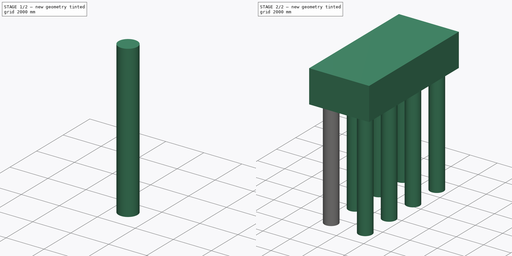
[diagram: build sequence overview — one tinted view per stage of 2, left to right]
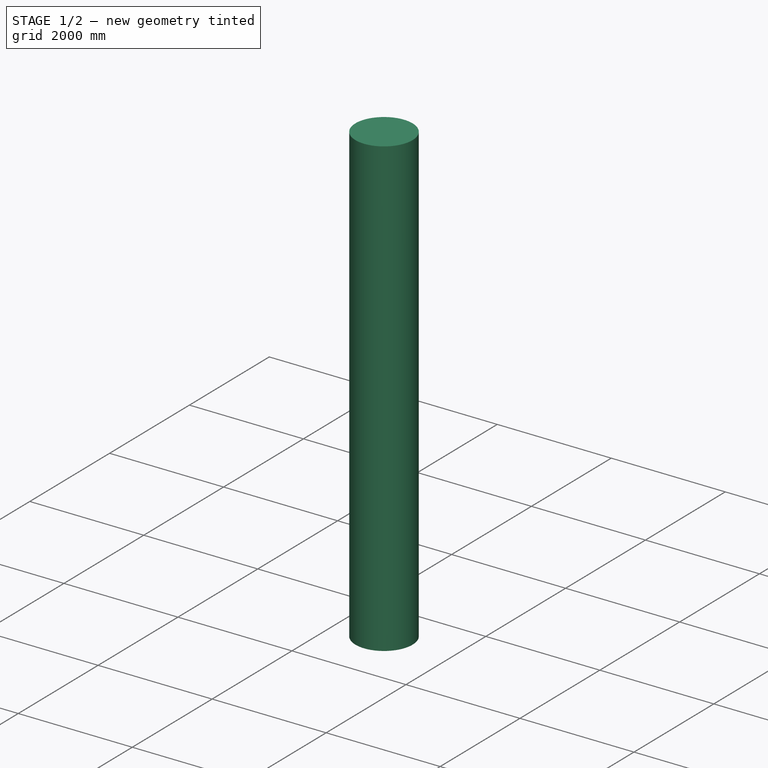
[diagram: stage 1 of 2 — iso view after this stage's code; geometry added in this stage tinted green]
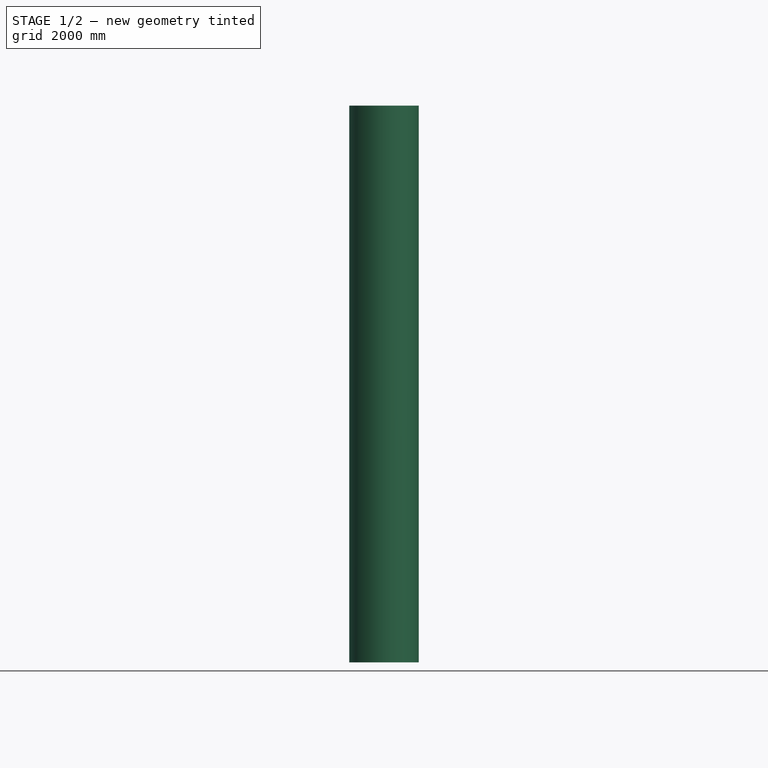
[diagram: stage 1 of 2 — front view after this stage's code; geometry added in this stage tinted green]
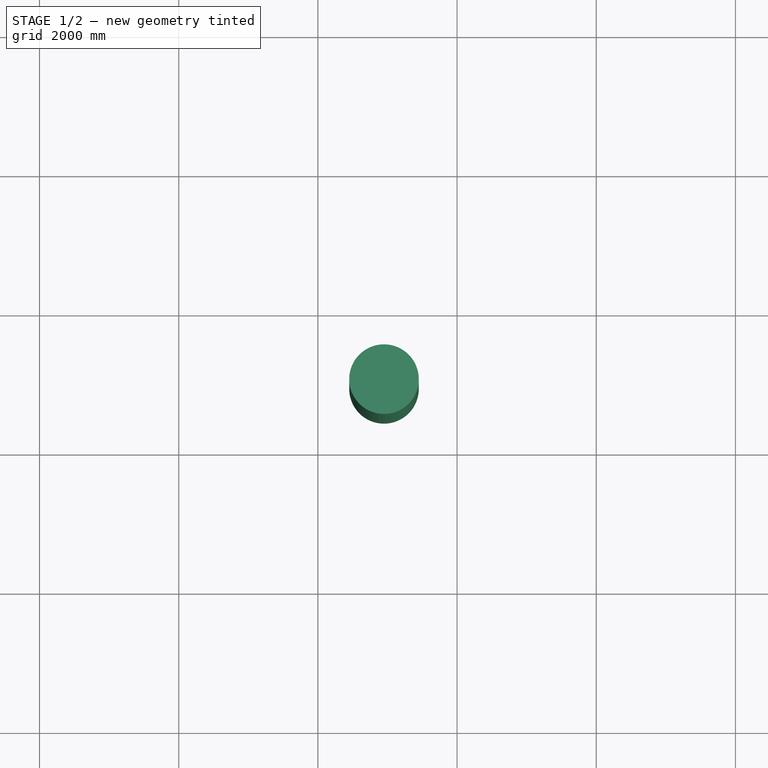
[diagram: stage 1 of 2 — top view after this stage's code; geometry added in this stage tinted green]
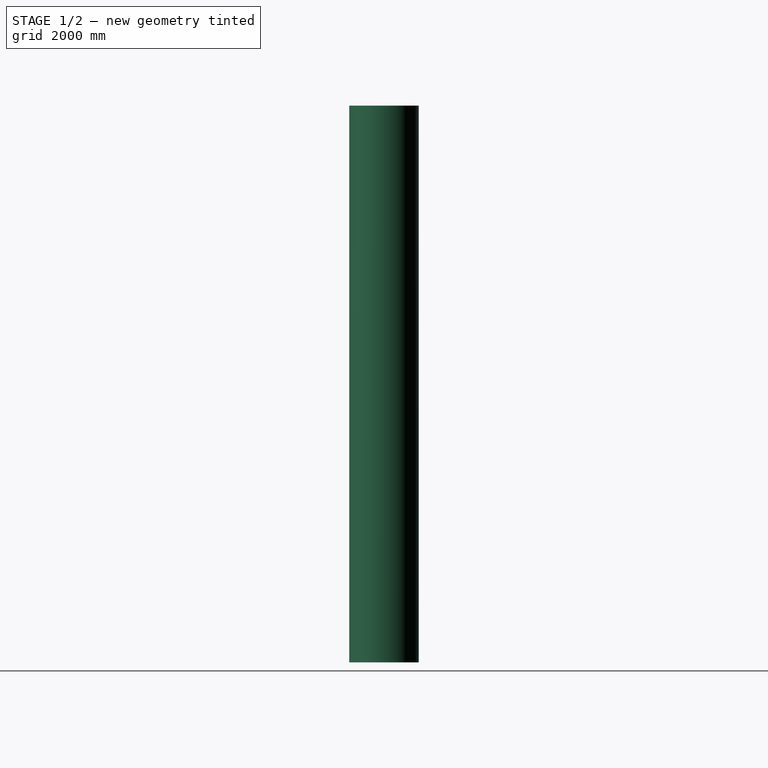
[diagram: stage 1 of 2 — right view after this stage's code; geometry added in this stage tinted green]
FCSTD DOCUMENT  (FreeCAD 0.16R6704 (Git))
Label: Block_and_n_piles_assembly
License: All rights reserved
LicenseURL: http://en.wikipedia.org/wiki/All_rights_reserved
objects: Sketcher::SketchObject×2, Part::FeaturePython×2, Part::Extrusion×1, Part::MultiFuse×1
note: 6 computed .brp shape members not serialized (recipe doc carries the construction recipe); baked Part::Feature solids carry a one-line shape summary decoded from their .brp

FEATURE [Sketcher::SketchObject] Sketch300  label="Dimensions_block "
  sketch-geometry (4):
    g0: LineSegment StartX=0 StartY=9402.5 StartZ=0 EndX=0 EndY=0 EndZ=0
    g1: LineSegment StartX=0 StartY=0 StartZ=0 EndX=4400 EndY=0 EndZ=0
    g2: LineSegment StartX=4400 StartY=0 StartZ=0 EndX=4400 EndY=9402.5 EndZ=0
    g3: LineSegment StartX=4400 StartY=9402.5 StartZ=0 EndX=0 EndY=9402.5 EndZ=0
  constraints (12):
    c: DistanceX(g3,g3) = 4400  'Width'
    c: DistanceY(g0,g0) = 9402.5  'Length'
    c: Horizontal(g3)
    c: Horizontal(g1)
    c: Vertical(g0)
    c: Vertical(g2)
    c: Coincident(g0,g3)
    c: Coincident(g2,g3)
    c: Coincident(g0,g1)
    c: Coincident(g1,g2)
    c: DistanceX(g0) = 0
    c: DistanceY(g0) = 0
FEATURE [Part::FeaturePython] Structure030  label="Block_height"  # WARN: FeaturePython — macro-defined, semantics opaque (R4)
  Base = -> Sketch300
  Height = 2400
  Length = 0
  MoveWithHost = false
  Nodes = (2) [(-1317.16,23445.7,0),(-1317.16,23445.7,2400)]
  Normal = (0,0,0)
  Role = 6
  Width = 100
FEATURE [Sketcher::SketchObject] Sketch012  label="Radius_piles 001"
  ExternalGeometry = -> [Structure030]
  Placement = pos=(0,0,0) rot=(1,0,0;3.14159rad)
  Support = -> Structure030 [Face5]
  sketch-geometry (3):
    g0: Circle CenterX=950 CenterY=-950 CenterZ=0 NormalX=0 NormalY=0 NormalZ=1 Radius=500
    g1: LineSegment [constr] StartX=950 StartY=-16771.7 StartZ=0 EndX=950 EndY=-29809.3 EndZ=0
    g2: LineSegment [constr] StartX=-5654.59 StartY=-950 StartZ=0 EndX=1908.39 EndY=-950 EndZ=0
  constraints (7):
    c: Vertical(g1)
    c: Horizontal(g2)
    c: PointOnObject(g0,g2)
    c: PointOnObject(g0,g1)
    c: Radius(g0) = 500  'Radius_pile'
    c: DistanceY(g2,g-4) = 950  'Horizontal_axis'
    c: DistanceX(g-4,g1) = 950  'Vertical_axis'
FEATURE [Part::Extrusion] Extrude_Sketch012  label="First_pile_height"
  Base = -> Sketch012
  Dir = (0,0,-8000)
  Placement = pos=(0,0,50) rot=(0,0,1;0rad)
  Solid = true
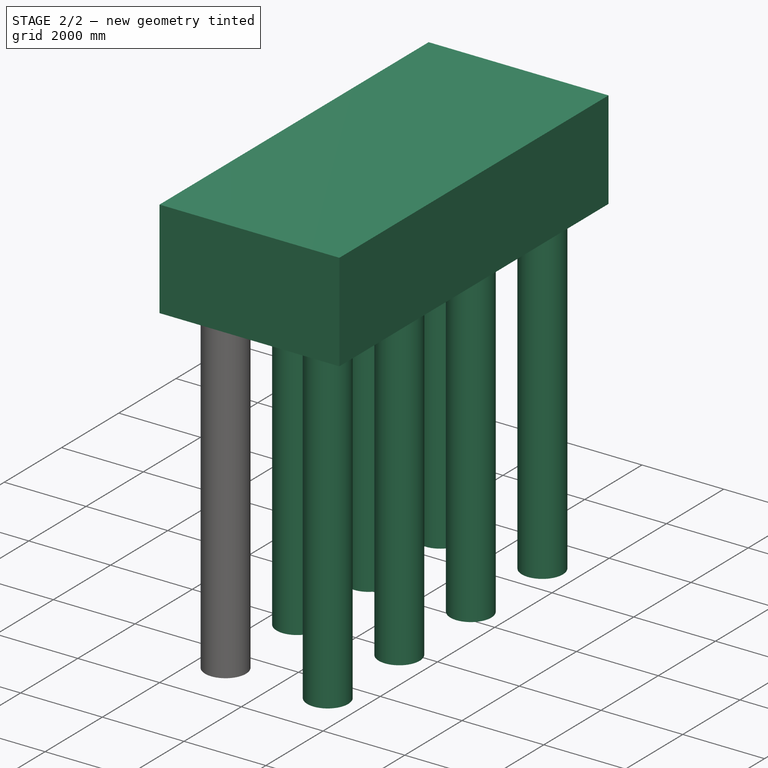
[diagram: stage 2 of 2 — iso view after this stage's code; geometry added in this stage tinted green]
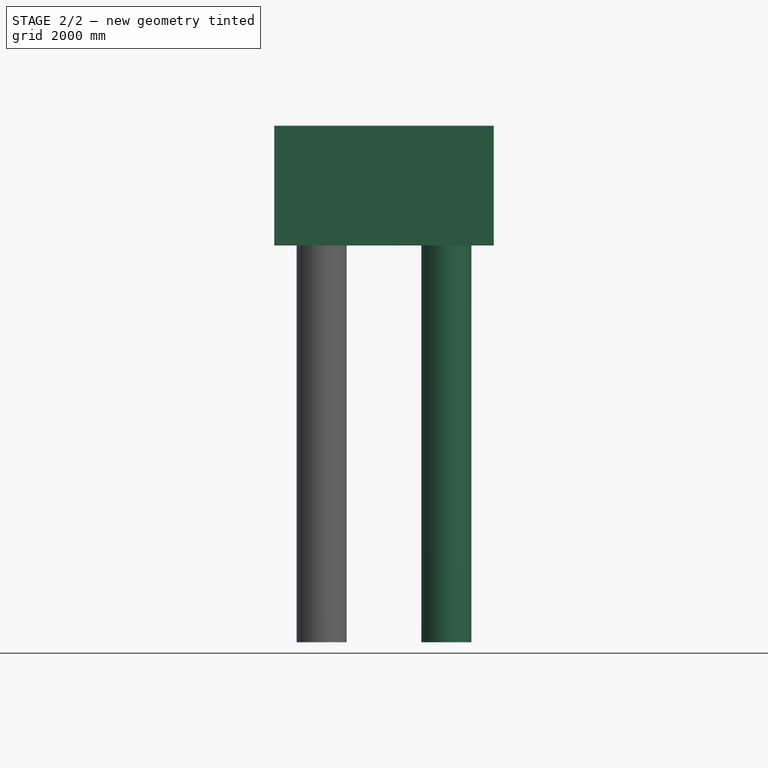
[diagram: stage 2 of 2 — front view after this stage's code; geometry added in this stage tinted green]
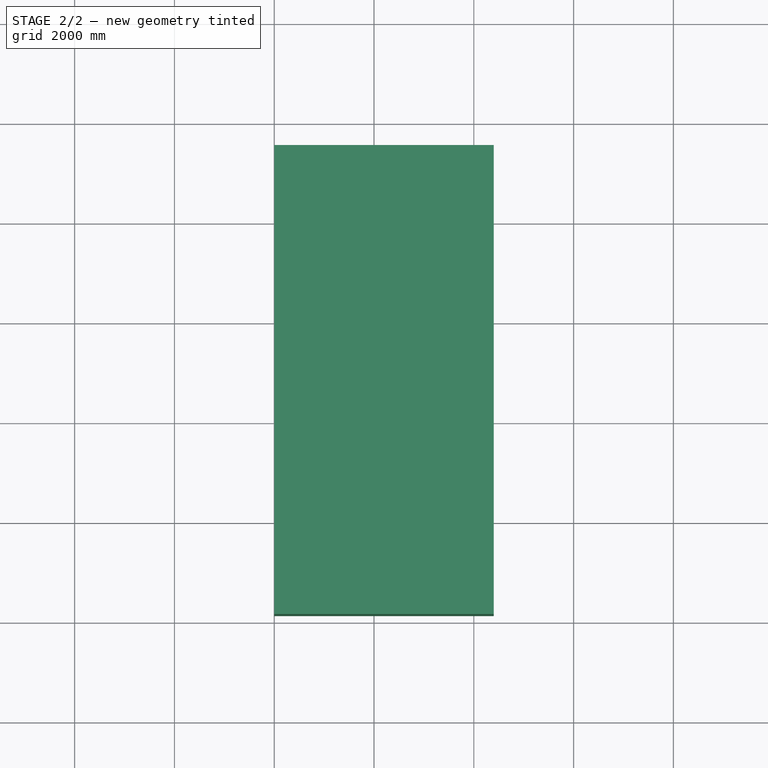
[diagram: stage 2 of 2 — top view after this stage's code; geometry added in this stage tinted green]
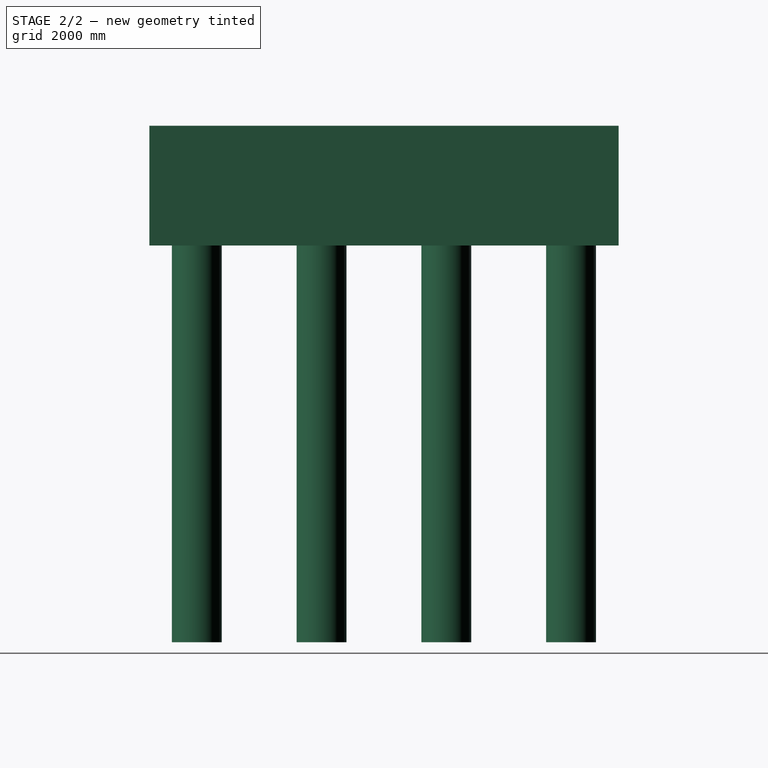
[diagram: stage 2 of 2 — right view after this stage's code; geometry added in this stage tinted green]
FEATURE [Part::FeaturePython] Array056  label="Pile_assembly"  # Draft array (typed FeaturePython)
  Angle = 360
  ArrayType = 0
  Axis = (0,0,1)
  Base = -> Extrude_Sketch012
  Center = (0,0,0)
  Fuse = false
  IntervalAxis = (0,0,0)
  IntervalX = (2500,0,0)
  IntervalY = (0,2500,0)
  IntervalZ = (0,0,0)
  NumberPolar = 1
  NumberX = 2
  NumberY = 4
  NumberZ = 1
FEATURE [Part::MultiFuse] Fusion063  label="Block_and_n_piles_assembly "
  Shapes = -> [Structure030,Array056]
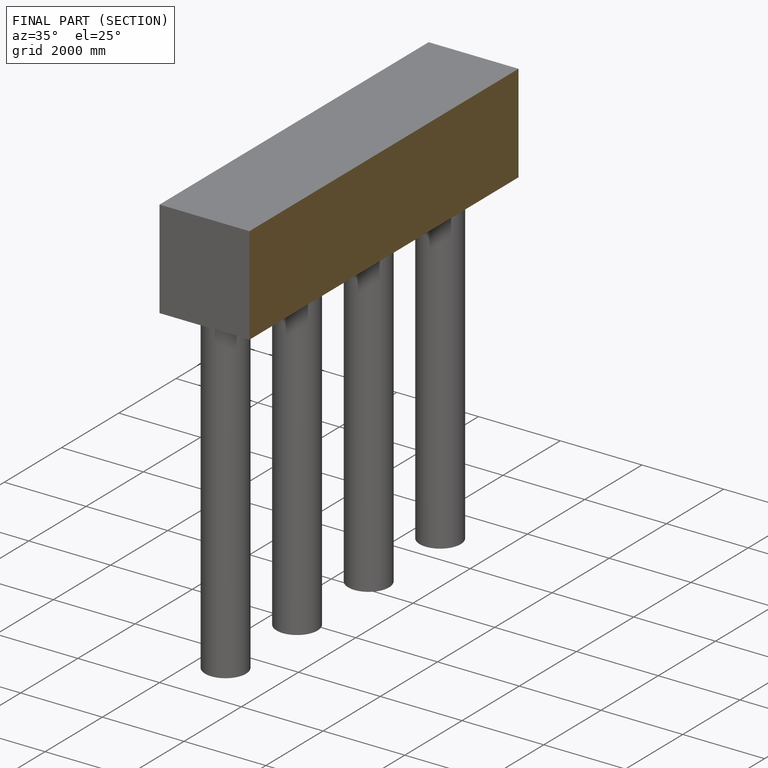
[diagram: finished part — half-section view (interior)]
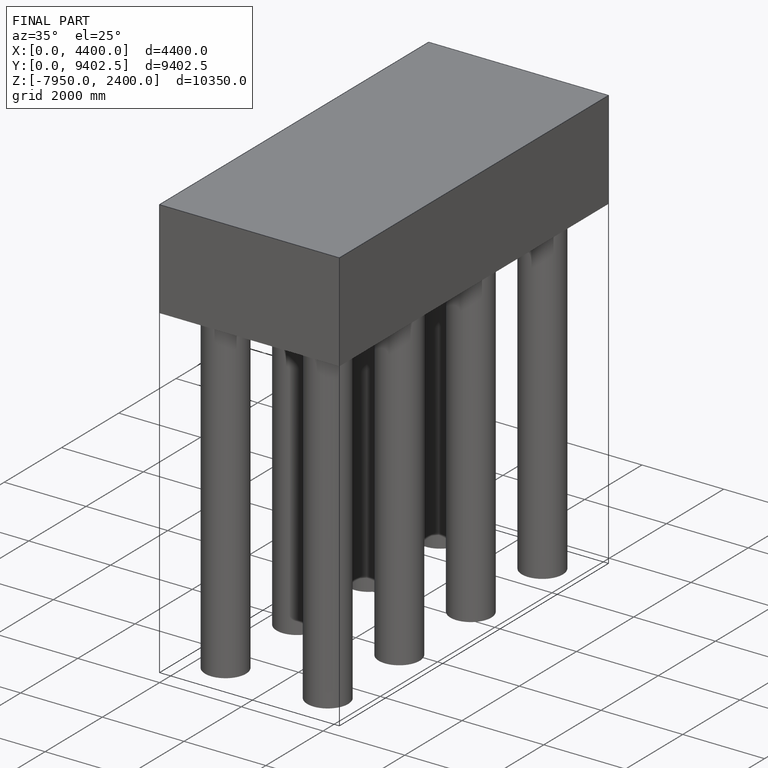
[diagram: finished part — iso view with bounding-box wireframe]
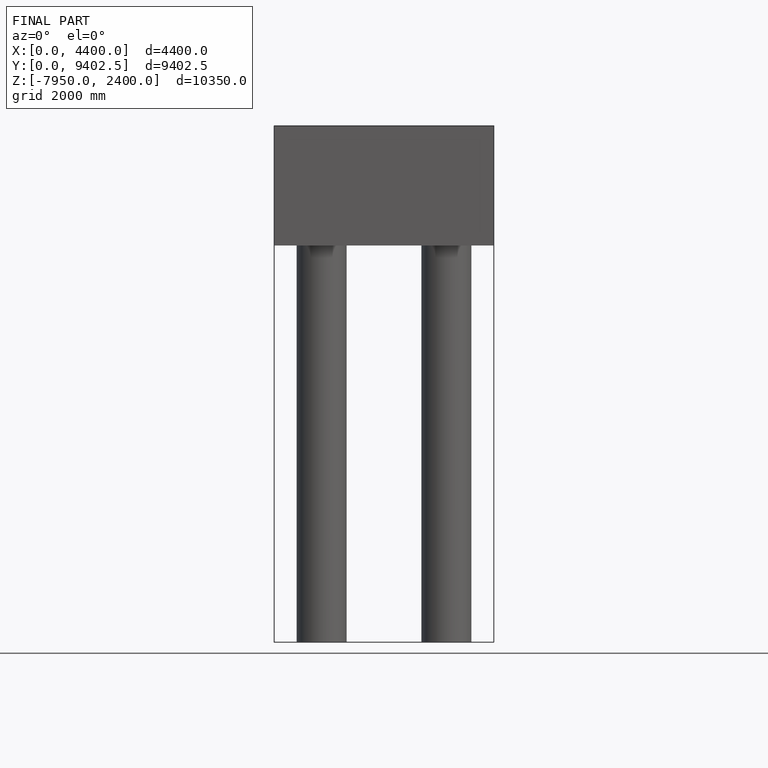
[diagram: finished part — front view with bounding-box wireframe]
